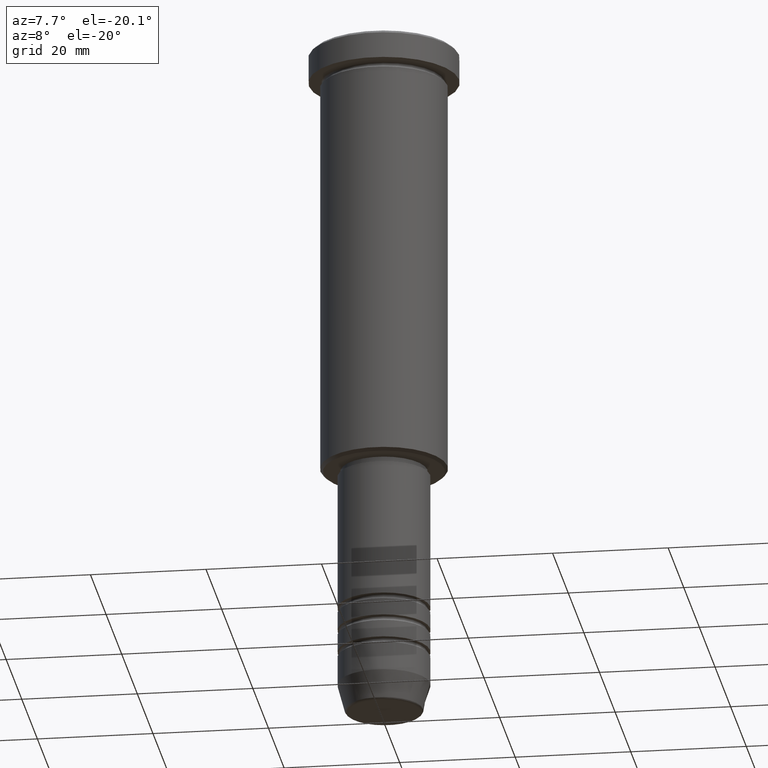
[diagram: clean part render]
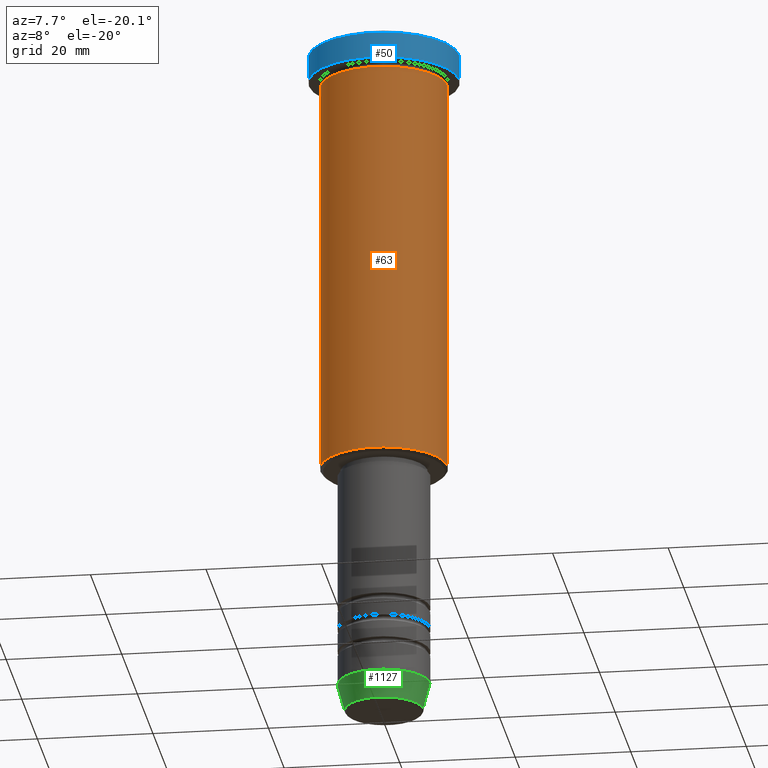
[diagram: same view with three faces highlighted in distinct colors, each labeled with its STEP entity id]
A machine part, auxiliary view with three faces highlighted in distinct colors.
Their STEP definitions:

[orange] entity #63 — the highlighted cylindrical surface (partial cylindrical patch) has radius 11 mm, axis along (-0, -0, 1).
#7 = VERTEX_POINT ( 'NONE', #472 ) ;
#8 = ORIENTED_EDGE ( 'NONE', *, *, #731, .F. ) ;
#63 = ADVANCED_FACE ( 'NONE', ( #117 ), #308, .T. ) ;
#114 = DIRECTION ( 'NONE',  ( 1.000000000000000000, 0.000000000000000000, 0.000000000000000000 ) ) ;
#117 = FACE_OUTER_BOUND ( 'NONE', #809, .T. ) ;
#119 = AXIS2_PLACEMENT_3D ( 'NONE', #1067, #983, #169 ) ;
#164 = DIRECTION ( 'NONE',  ( 1.000000000000000000, 0.000000000000000000, 0.000000000000000000 ) ) ;
#169 = DIRECTION ( 'NONE',  ( -1.000000000000000000, 0.000000000000000000, 0.000000000000000000 ) ) ;
#195 = ORIENTED_EDGE ( 'NONE', *, *, #618, .T. ) ;
#222 = DIRECTION ( 'NONE',  ( -0.000000000000000000, -0.000000000000000000, 1.000000000000000000 ) ) ;
#225 = CARTESIAN_POINT ( 'NONE',  ( 0.000000000000000000, 0.000000000000000000, -5.999999999999999112 ) ) ;
#299 = ORIENTED_EDGE ( 'NONE', *, *, #583, .F. ) ;
#308 = CYLINDRICAL_SURFACE ( 'NONE', #358, 11.00000000000000000 ) ;
#314 = CARTESIAN_POINT ( 'NONE',  ( 11.00000000000000000, 0.000000000000000000, 0.000000000000000000 ) ) ;
#358 = AXIS2_PLACEMENT_3D ( 'NONE', #675, #788, #164 ) ;
#372 = CARTESIAN_POINT ( 'NONE',  ( -11.00000000000000000, 1.347111479062088405E-15, -75.50000000000001421 ) ) ;
#374 = AXIS2_PLACEMENT_3D ( 'NONE', #225, #925, #114 ) ;
#403 = VERTEX_POINT ( 'NONE', #717 ) ;
#472 = CARTESIAN_POINT ( 'NONE',  ( 11.00000000000000000, 0.000000000000000000, -5.999999999999999112 ) ) ;
#478 = LINE ( 'NONE', #314, #610 ) ;
#583 = EDGE_CURVE ( 'NONE', #939, #739, #598, .T. ) ;
#598 = LINE ( 'NONE', #961, #709 ) ;
#610 = VECTOR ( 'NONE', #844, 1000.000000000000000 ) ;
#618 = EDGE_CURVE ( 'NONE', #403, #7, #478, .T. ) ;
#675 = CARTESIAN_POINT ( 'NONE',  ( 0.000000000000000000, 0.000000000000000000, 0.000000000000000000 ) ) ;
#709 = VECTOR ( 'NONE', #222, 1000.000000000000000 ) ;
#717 = CARTESIAN_POINT ( 'NONE',  ( 11.00000000000000000, 0.000000000000000000, -75.50000000000001421 ) ) ;
#731 = EDGE_CURVE ( 'NONE', #739, #7, #911, .T. ) ;
#739 = VERTEX_POINT ( 'NONE', #938 ) ;
#788 = DIRECTION ( 'NONE',  ( -0.000000000000000000, -0.000000000000000000, 1.000000000000000000 ) ) ;
#809 = EDGE_LOOP ( 'NONE', ( #299, #813, #195, #8 ) ) ;
#813 = ORIENTED_EDGE ( 'NONE', *, *, #843, .T. ) ;
#843 = EDGE_CURVE ( 'NONE', #939, #403, #1106, .T. ) ;
#844 = DIRECTION ( 'NONE',  ( -0.000000000000000000, -0.000000000000000000, 1.000000000000000000 ) ) ;
#911 = CIRCLE ( 'NONE', #374, 11.00000000000000000 ) ;
#925 = DIRECTION ( 'NONE',  ( -0.000000000000000000, -0.000000000000000000, 1.000000000000000000 ) ) ;
#938 = CARTESIAN_POINT ( 'NONE',  ( -11.00000000000000000, 1.347111479062088405E-15, -5.999999999999999112 ) ) ;
#939 = VERTEX_POINT ( 'NONE', #372 ) ;
#961 = CARTESIAN_POINT ( 'NONE',  ( -11.00000000000000000, 1.347111479062088405E-15, 0.000000000000000000 ) ) ;
#983 = DIRECTION ( 'NONE',  ( -0.000000000000000000, -0.000000000000000000, 1.000000000000000000 ) ) ;
#1067 = CARTESIAN_POINT ( 'NONE',  ( 0.000000000000000000, 0.000000000000000000, -75.50000000000001421 ) ) ;
#1106 = CIRCLE ( 'NONE', #119, 11.00000000000000000 ) ;

[blue] entity #50 — the highlighted cylindrical surface (partial cylindrical patch) has radius 13 mm, axis along (-0, -0, 1).
#50 = ADVANCED_FACE ( 'NONE', ( #572 ), #754, .T. ) ;
#109 = DIRECTION ( 'NONE',  ( 1.000000000000000000, 0.000000000000000000, 0.000000000000000000 ) ) ;
#121 = CARTESIAN_POINT ( 'NONE',  ( 0.000000000000000000, 0.000000000000000000, -0.5000000000000073275 ) ) ;
#203 = CARTESIAN_POINT ( 'NONE',  ( -13.00000000000000000, 1.592040838891559095E-15, -0.5000000000000073275 ) ) ;
#208 = VECTOR ( 'NONE', #721, 1000.000000000000000 ) ;
#211 = AXIS2_PLACEMENT_3D ( 'NONE', #121, #384, #1108 ) ;
#244 = DIRECTION ( 'NONE',  ( -0.000000000000000000, -0.000000000000000000, 1.000000000000000000 ) ) ;
#278 = EDGE_CURVE ( 'NONE', #405, #730, #674, .T. ) ;
#321 = DIRECTION ( 'NONE',  ( 1.000000000000000000, 0.000000000000000000, 0.000000000000000000 ) ) ;
#353 = LINE ( 'NONE', #876, #208 ) ;
#359 = EDGE_LOOP ( 'NONE', ( #556, #1178, #362, #573 ) ) ;
#362 = ORIENTED_EDGE ( 'NONE', *, *, #524, .T. ) ;
#380 = CARTESIAN_POINT ( 'NONE',  ( 13.00000000000000000, 0.000000000000000000, -0.5000000000000073275 ) ) ;
#384 = DIRECTION ( 'NONE',  ( 0.000000000000000000, 0.000000000000000000, -1.000000000000000000 ) ) ;
#405 = VERTEX_POINT ( 'NONE', #868 ) ;
#427 = AXIS2_PLACEMENT_3D ( 'NONE', #1123, #922, #109 ) ;
#524 = EDGE_CURVE ( 'NONE', #722, #581, #353, .T. ) ;
#556 = ORIENTED_EDGE ( 'NONE', *, *, #278, .F. ) ;
#572 = FACE_OUTER_BOUND ( 'NONE', #359, .T. ) ;
#573 = ORIENTED_EDGE ( 'NONE', *, *, #984, .T. ) ;
#581 = VERTEX_POINT ( 'NONE', #380 ) ;
#585 = CARTESIAN_POINT ( 'NONE',  ( -13.00000000000000000, 1.592040838891559095E-15, 0.000000000000000000 ) ) ;
#612 = CIRCLE ( 'NONE', #211, 13.00000000000000000 ) ;
#674 = LINE ( 'NONE', #585, #810 ) ;
#721 = DIRECTION ( 'NONE',  ( -0.000000000000000000, -0.000000000000000000, 1.000000000000000000 ) ) ;
#722 = VERTEX_POINT ( 'NONE', #1140 ) ;
#730 = VERTEX_POINT ( 'NONE', #203 ) ;
#754 = CYLINDRICAL_SURFACE ( 'NONE', #427, 13.00000000000000000 ) ;
#762 = CIRCLE ( 'NONE', #937, 13.00000000000000000 ) ;
#810 = VECTOR ( 'NONE', #1024, 1000.000000000000000 ) ;
#868 = CARTESIAN_POINT ( 'NONE',  ( -13.00000000000000000, 1.592040838891559095E-15, -5.000000000000000000 ) ) ;
#876 = CARTESIAN_POINT ( 'NONE',  ( 13.00000000000000000, 0.000000000000000000, 0.000000000000000000 ) ) ;
#922 = DIRECTION ( 'NONE',  ( -0.000000000000000000, -0.000000000000000000, 1.000000000000000000 ) ) ;
#937 = AXIS2_PLACEMENT_3D ( 'NONE', #958, #244, #321 ) ;
#958 = CARTESIAN_POINT ( 'NONE',  ( 0.000000000000000000, 0.000000000000000000, -5.000000000000000000 ) ) ;
#984 = EDGE_CURVE ( 'NONE', #581, #730, #612, .T. ) ;
#1024 = DIRECTION ( 'NONE',  ( -0.000000000000000000, -0.000000000000000000, 1.000000000000000000 ) ) ;
#1075 = EDGE_CURVE ( 'NONE', #405, #722, #762, .T. ) ;
#1108 = DIRECTION ( 'NONE',  ( 1.000000000000000000, 0.000000000000000000, 0.000000000000000000 ) ) ;
#1123 = CARTESIAN_POINT ( 'NONE',  ( 0.000000000000000000, 0.000000000000000000, 0.000000000000000000 ) ) ;
#1140 = CARTESIAN_POINT ( 'NONE',  ( 13.00000000000000000, 0.000000000000000000, -5.000000000000000000 ) ) ;
#1178 = ORIENTED_EDGE ( 'NONE', *, *, #1075, .T. ) ;

[green] entity #1127 — the highlighted conical surface has half-angle 15 deg.
#61 = VECTOR ( 'NONE', #771, 1000.000000000000114 ) ;
#67 = VERTEX_POINT ( 'NONE', #979 ) ;
#96 = AXIS2_PLACEMENT_3D ( 'NONE', #677, #1035, #944 ) ;
#97 = ORIENTED_EDGE ( 'NONE', *, *, #947, .T. ) ;
#128 = CARTESIAN_POINT ( 'NONE',  ( 8.000000000000000000, 0.000000000000000000, -114.9999999999999858 ) ) ;
#136 = ORIENTED_EDGE ( 'NONE', *, *, #691, .T. ) ;
#153 = DIRECTION ( 'NONE',  ( 1.000000000000000000, 0.000000000000000000, 0.000000000000000000 ) ) ;
#194 = VECTOR ( 'NONE', #611, 1000.000000000000114 ) ;
#196 = DIRECTION ( 'NONE',  ( 1.000000000000000000, 0.000000000000000000, 0.000000000000000000 ) ) ;
#261 = LINE ( 'NONE', #539, #194 ) ;
#370 = DIRECTION ( 'NONE',  ( -0.000000000000000000, -0.000000000000000000, 1.000000000000000000 ) ) ;
#373 = ORIENTED_EDGE ( 'NONE', *, *, #1161, .F. ) ;
#411 = CIRCLE ( 'NONE', #742, 6.759553456999436882 ) ;
#539 = CARTESIAN_POINT ( 'NONE',  ( -8.000000000000000000, 9.797174393178825657E-16, -114.9999999999999858 ) ) ;
#604 = CARTESIAN_POINT ( 'NONE',  ( 0.000000000000000000, 0.000000000000000000, -114.9999999999999858 ) ) ;
#611 = DIRECTION ( 'NONE',  ( -0.2588190451025214611, 3.169619151431774186E-17, 0.9659258262890679791 ) ) ;
#613 = CIRCLE ( 'NONE', #693, 8.000000000000000000 ) ;
#645 = ORIENTED_EDGE ( 'NONE', *, *, #1117, .F. ) ;
#649 = VERTEX_POINT ( 'NONE', #1136 ) ;
#677 = CARTESIAN_POINT ( 'NONE',  ( 0.000000000000000000, 0.000000000000000000, -114.9999999999999858 ) ) ;
#691 = EDGE_CURVE ( 'NONE', #649, #945, #837, .T. ) ;
#693 = AXIS2_PLACEMENT_3D ( 'NONE', #604, #967, #153 ) ;
#699 = EDGE_LOOP ( 'NONE', ( #373, #97, #136, #645 ) ) ;
#742 = AXIS2_PLACEMENT_3D ( 'NONE', #1115, #370, #196 ) ;
#771 = DIRECTION ( 'NONE',  ( 0.2588190451025214611, 0.000000000000000000, 0.9659258262890679791 ) ) ;
#837 = LINE ( 'NONE', #1043, #61 ) ;
#933 = VERTEX_POINT ( 'NONE', #1028 ) ;
#944 = DIRECTION ( 'NONE',  ( 1.000000000000000000, 0.000000000000000000, 0.000000000000000000 ) ) ;
#945 = VERTEX_POINT ( 'NONE', #128 ) ;
#947 = EDGE_CURVE ( 'NONE', #67, #649, #411, .T. ) ;
#967 = DIRECTION ( 'NONE',  ( -0.000000000000000000, -0.000000000000000000, 1.000000000000000000 ) ) ;
#979 = CARTESIAN_POINT ( 'NONE',  ( -6.759553456999437770, 9.037619948979306213E-16, -119.6294095225512564 ) ) ;
#1028 = CARTESIAN_POINT ( 'NONE',  ( -8.000000000000000000, 9.797174393178825657E-16, -114.9999999999999858 ) ) ;
#1032 = CONICAL_SURFACE ( 'NONE', #96, 8.000000000000000000, 0.2617993877991502405 ) ;
#1035 = DIRECTION ( 'NONE',  ( -0.000000000000000000, -0.000000000000000000, 1.000000000000000000 ) ) ;
#1043 = CARTESIAN_POINT ( 'NONE',  ( 8.000000000000000000, 0.000000000000000000, -114.9999999999999858 ) ) ;
#1115 = CARTESIAN_POINT ( 'NONE',  ( 0.000000000000000000, 0.000000000000000000, -119.6294095225512564 ) ) ;
#1117 = EDGE_CURVE ( 'NONE', #933, #945, #613, .T. ) ;
#1127 = ADVANCED_FACE ( 'NONE', ( #1128 ), #1032, .T. ) ;
#1128 = FACE_OUTER_BOUND ( 'NONE', #699, .T. ) ;
#1136 = CARTESIAN_POINT ( 'NONE',  ( 6.759553456999436882, 0.000000000000000000, -119.6294095225512564 ) ) ;
#1161 = EDGE_CURVE ( 'NONE', #67, #933, #261, .T. ) ;